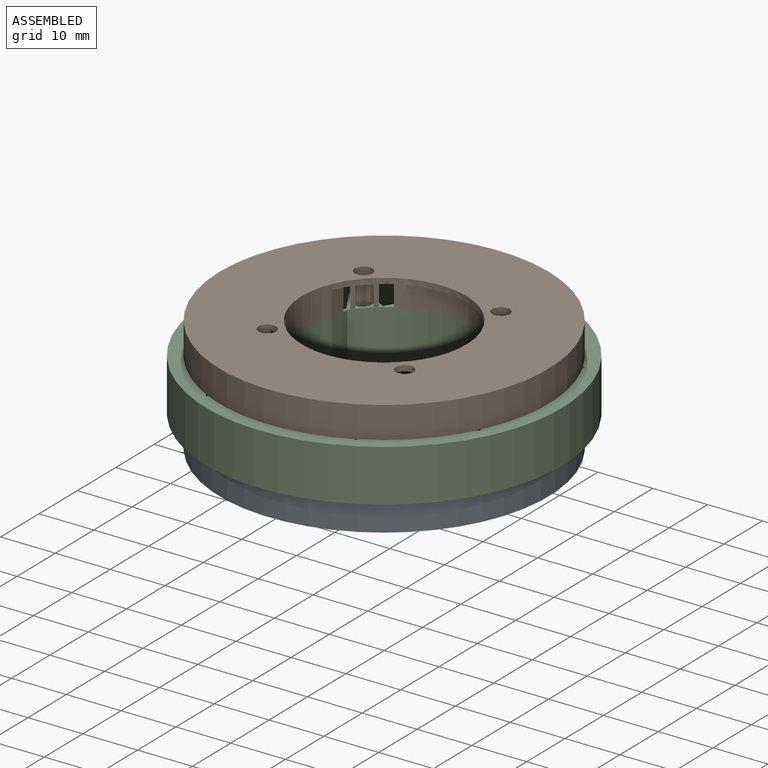
[diagram: assembled view]
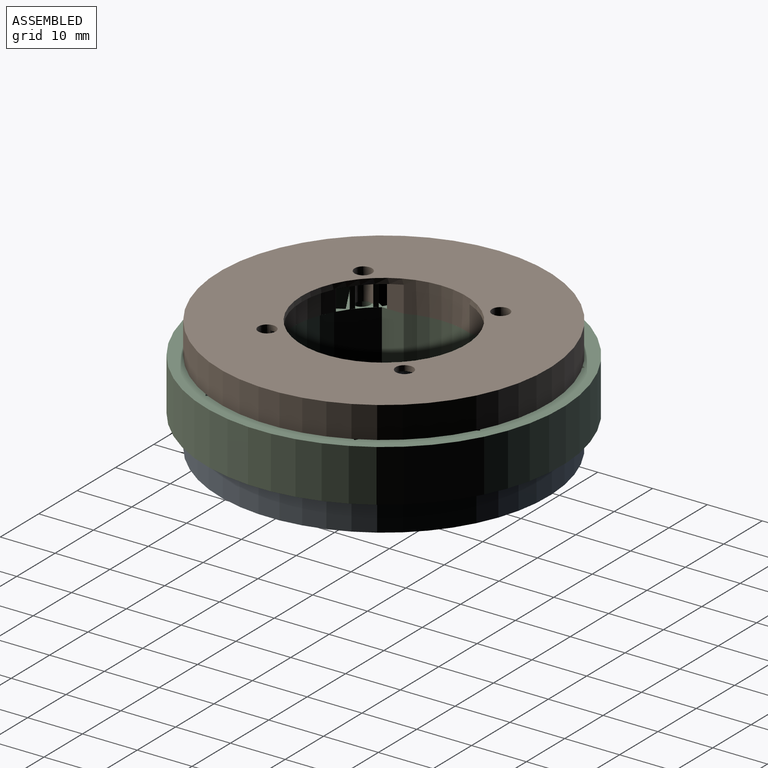
[diagram: assembled view, second angle]
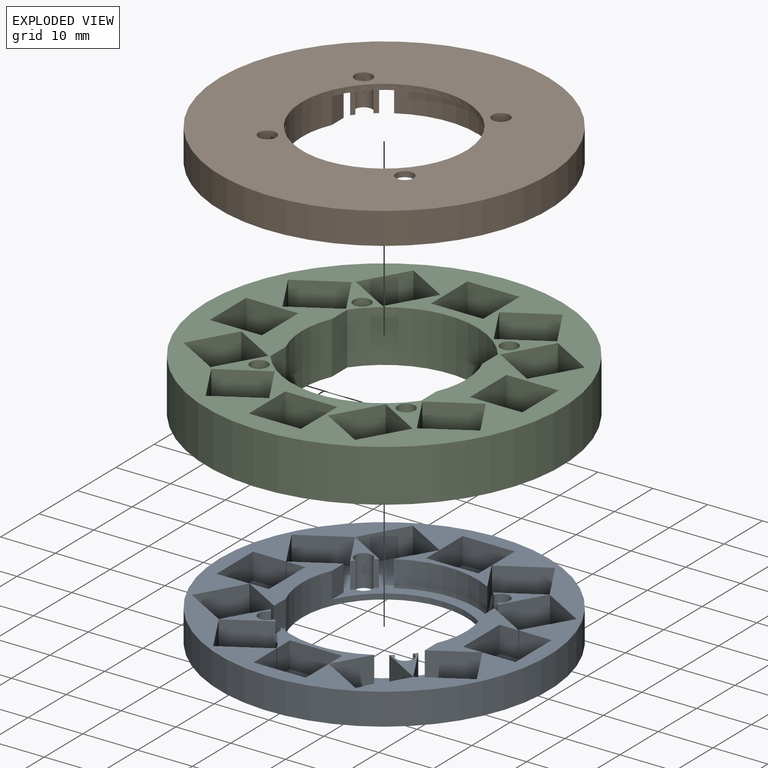
[diagram: exploded view]
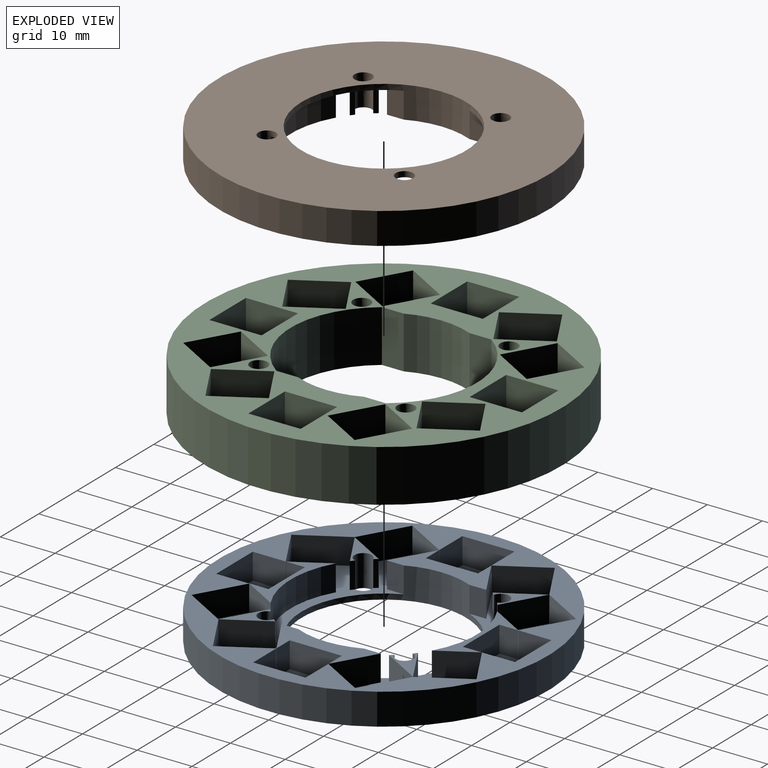
[diagram: exploded view, second angle]
ASSEMBLY  parts=3 mates=2
PART A: 87 faces, bbox 60x60x5.8 mm
  f0: plane 7.36x7.36mm, normal (0,0,1), area 11.4mm2, adj f40,f41,f69,f83,f85
  f1: plane 17x6.48mm, normal (0,0,1), area 26.7mm2, adj f15,f44,f45,f53,f54,f82
  f2: plane 7.36x7.36mm, normal (0,0,1), area 11.4mm2, adj f51,f52,f70,f84,f86
  f3: plane 18.13x7.45mm, normal (0,0,1), area 59.9mm2, adj f13,f17,f56,f57,f67,f68,f77,f81
  f4: plane 7.36x7.36mm, normal (0,0,1), area 11.4mm2, adj f65,f66,f71,f75,f76
  f5: plane 17x6.48mm, normal (0,0,1), area 26.7mm2, adj f11,f20,f29,f30,f64,f78
  f6: plane 18.13x7.45mm, normal (0,0,1), area 59.9mm2, adj f7,f8,f17,f33,f34,f42,f79,f80
  f7: plane 7.45x4.76mm, normal (-0.5,0.87,0), area 41mm2, adj f6,f31,f34,f79
  f8: plane 7.45x4.76mm, normal (-0.5,-0.87,0), area 41mm2, adj f6,f31,f42,f80
  f9: plane 60x60mm, normal (0,0,1), area 661.7mm2, adj f12,f14,f16,f18,f21,f22,f23,f24
  f10: plane 7.36x7.36mm, normal (0,0,1), area 11.4mm2, adj f27,f28,f72,f73,f74
  f11: plane 4.76x3.46mm, normal (-1,0,0), area 16.5mm2, adj f5,f20,f31,f64
  f12: plane 8.23x4.76mm, normal (-0.87,-0.5,0), area 45.3mm2, adj f9,f31,f50,f55
  f13: plane 7.45x4.76mm, normal (0.5,-0.87,0), area 41mm2, adj f3,f31,f57,f81
  f14: plane 8.23x4.76mm, normal (-0.5,0.87,0), area 45.3mm2, adj f9,f31,f39,f43
  f15: plane 6.48x4.76mm, normal (-0.87,-0.5,0), area 35.6mm2, adj f1,f31,f45,f82
  f16: plane 8.23x4.76mm, normal (0.87,0.5,0), area 45.3mm2, adj f9,f26,f31,f32
  f17: cylinder r=15mm len=30mm, axis (0,0,-1), area 211.8mm2, adj f3,f6,f19,f31,f77,f79,f80,f81
  f18: cylinder r=30mm len=60mm, axis (0,0,-1), area 1086.2mm2, adj f9,f19
  f19: plane 60x60mm, normal (0,0,-1), area 2088.9mm2, adj f17,f18,f69,f70,f71,f72
  f20: plane 9.53x4.76mm, normal (0,1,0), area 45.4mm2, adj f5,f11,f30,f31
  f21: plane 6.02x4.76mm, normal (-1,0,0), area 28.7mm2, adj f9,f22,f31,f63
  f22: plane 9.53x4.76mm, normal (0,-1,0), area 45.4mm2, adj f9,f21,f23,f31
  f23: plane 6.02x4.76mm, normal (1,0,0), area 28.7mm2, adj f9,f22,f24,f31
  f24: plane 8.23x4.76mm, normal (-0.5,-0.87,0), area 45.3mm2, adj f9,f23,f25,f31
  f25: plane 8.24x4.76mm, normal (0.87,-0.5,0), area 45.3mm2, adj f9,f24,f26,f31
  f26: plane 8.24x4.76mm, normal (0.5,-0.87,0), area 45.3mm2, adj f9,f16,f25,f31
  f27: plane 7.36x4.76mm, normal (-0.87,-0.5,0), area 40.5mm2, adj f10,f28,f31,f74
  f28: plane 7.36x4.76mm, normal (0.5,0.87,0), area 40.5mm2, adj f10,f27,f31,f73
  f29: plane 6.48x4.76mm, normal (-0.87,0.5,0), area 35.6mm2, adj f5,f30,f31,f78
  f30: plane 4.76x3.46mm, normal (1,0,0), area 16.5mm2, adj f5,f20,f29,f31
  f31: plane 54.53x54.53mm, normal (0,0,1), area 1208.4mm2, adj f7,f8,f11,f12,f13,f14,f15,f16
  f32: plane 6.02x4.76mm, normal (0,-1,0), area 28.7mm2, adj f9,f16,f31,f35
  f33: plane 9.53x4.76mm, normal (-1,0,0), area 45.4mm2, adj f6,f31,f34,f42
  f34: plane 4.76x3.46mm, normal (0,-1,0), area 16.5mm2, adj f6,f7,f31,f33
  f35: plane 9.53x4.76mm, normal (1,0,0), area 45.4mm2, adj f9,f31,f32,f36
  f36: plane 6.02x4.76mm, normal (0,1,0), area 28.7mm2, adj f9,f31,f35,f37
  f37: plane 8.23x4.76mm, normal (0.87,-0.5,0), area 45.3mm2, adj f9,f31,f36,f38
  f38: plane 8.24x4.76mm, normal (0.5,0.87,0), area 45.3mm2, adj f9,f31,f37,f39
  f39: plane 8.24x4.76mm, normal (0.87,0.5,0), area 45.3mm2, adj f9,f14,f31,f38
  f40: plane 7.36x4.76mm, normal (0.5,-0.87,0), area 40.5mm2, adj f0,f31,f41,f85
  f41: plane 7.36x4.76mm, normal (-0.87,0.5,0), area 40.5mm2, adj f0,f31,f40,f83
  f42: plane 4.76x3.46mm, normal (0,1,0), area 16.5mm2, adj f6,f8,f31,f33
  f43: plane 6.02x4.76mm, normal (1,0,0), area 28.7mm2, adj f9,f14,f31,f46
  f44: plane 9.53x4.76mm, normal (0,-1,0), area 45.4mm2, adj f1,f31,f45,f54
  f45: plane 4.76x3.46mm, normal (1,0,0), area 16.5mm2, adj f1,f15,f31,f44
  f46: plane 9.53x4.76mm, normal (0,1,0), area 45.4mm2, adj f9,f31,f43,f47
  f47: plane 6.02x4.76mm, normal (-1,0,0), area 28.7mm2, adj f9,f31,f46,f48
  f48: plane 8.23x4.76mm, normal (0.5,0.87,0), area 45.3mm2, adj f9,f31,f47,f49
  f49: plane 8.24x4.76mm, normal (-0.87,0.5,0), area 45.3mm2, adj f9,f31,f48,f50
  f50: plane 8.24x4.76mm, normal (-0.5,0.87,0), area 45.3mm2, adj f9,f12,f31,f49
  f51: plane 7.36x4.76mm, normal (0.87,0.5,0), area 40.5mm2, adj f2,f31,f52,f86
  f52: plane 7.36x4.76mm, normal (-0.5,-0.87,0), area 40.5mm2, adj f2,f31,f51,f84
  f53: plane 6.48x4.76mm, normal (0.87,-0.5,0), area 35.6mm2, adj f1,f31,f54,f82
  f54: plane 4.76x3.46mm, normal (-1,0,0), area 16.5mm2, adj f1,f31,f44,f53
  f55: plane 6.02x4.76mm, normal (0,1,0), area 28.7mm2, adj f9,f12,f31,f58
  f56: plane 9.53x4.76mm, normal (1,0,0), area 45.4mm2, adj f3,f31,f57,f68
  f57: plane 4.76x3.46mm, normal (0,1,0), area 16.5mm2, adj f3,f13,f31,f56
  f58: plane 9.53x4.76mm, normal (-1,0,0), area 45.4mm2, adj f9,f31,f55,f59
  f59: plane 6.02x4.76mm, normal (0,-1,0), area 28.7mm2, adj f9,f31,f58,f60
  f60: plane 8.23x4.76mm, normal (-0.87,0.5,0), area 45.3mm2, adj f9,f31,f59,f61
  f61: plane 8.24x4.76mm, normal (-0.5,-0.87,0), area 45.3mm2, adj f9,f31,f60,f62
  f62: plane 8.24x4.76mm, normal (-0.87,-0.5,0), area 45.3mm2, adj f9,f31,f61,f63
  f63: plane 8.23x4.76mm, normal (0.5,-0.87,0), area 45.3mm2, adj f9,f21,f31,f62
  f64: plane 6.48x4.76mm, normal (0.87,0.5,0), area 35.6mm2, adj f5,f11,f31,f78
  f65: plane 7.36x4.76mm, normal (-0.5,0.87,0), area 40.5mm2, adj f4,f31,f66,f75
  f66: plane 7.36x4.76mm, normal (0.87,-0.5,0), area 40.5mm2, adj f4,f31,f65,f76
  f67: plane 7.45x4.76mm, normal (0.5,0.87,0), area 41mm2, adj f3,f31,f68,f77
  f68: plane 4.76x3.46mm, normal (0,-1,0), area 16.5mm2, adj f3,f31,f56,f67
  f69: cylinder r=1.59mm len=5.76mm, axis (0,0,1), area 41.6mm2, adj f0,f19,f31,f83,f85
  f70: cylinder r=1.59mm len=5.76mm, axis (0,0,1), area 41.6mm2, adj f2,f19,f31,f84,f86
  f71: cylinder r=1.59mm len=5.76mm, axis (0,0,1), area 41.6mm2, adj f4,f19,f31,f75,f76
  f72: cylinder r=1.59mm len=5.76mm, axis (0,0,1), area 41.6mm2, adj f10,f19,f31,f73,f74
  f73: cylinder r=17mm len=4.76mm, axis (0,0,1), area 3.9mm2, adj f10,f28,f31,f72
  f74: cylinder r=17mm len=4.76mm, axis (0,0,1), area 3.9mm2, adj f10,f27,f31,f72
  f75: cylinder r=17mm len=4.76mm, axis (0,0,1), area 3.9mm2, adj f4,f31,f65,f71
  f76: cylinder r=17mm len=4.76mm, axis (0,0,1), area 3.9mm2, adj f4,f31,f66,f71
  f77: plane 4.76x3.06mm, normal (-1,0,0), area 14.6mm2, adj f3,f17,f31,f67
  f78: cylinder r=17mm len=17mm, axis (0,0,1), area 84.8mm2, adj f5,f29,f31,f64
  f79: plane 4.76x3.06mm, normal (1,0,0), area 14.6mm2, adj f6,f7,f17,f31
  f80: plane 4.76x3.06mm, normal (1,0,0), area 14.6mm2, adj f6,f8,f17,f31
  f81: plane 4.76x3.06mm, normal (-1,0,0), area 14.6mm2, adj f3,f13,f17,f31
  f82: cylinder r=17mm len=17mm, axis (0,0,1), area 84.8mm2, adj f1,f15,f31,f53
  f83: cylinder r=17mm len=4.76mm, axis (0,0,1), area 3.9mm2, adj f0,f31,f41,f69
  f84: cylinder r=17mm len=4.76mm, axis (0,0,1), area 3.9mm2, adj f2,f31,f52,f70
  f85: cylinder r=17mm len=4.76mm, axis (0,0,1), area 3.9mm2, adj f0,f31,f40,f69
  f86: cylinder r=17mm len=4.76mm, axis (0,0,1), area 3.9mm2, adj f2,f31,f51,f70
PART B: same geometry as A
PART C: 63 faces, bbox 65x65x9.5 mm
  f0: plane 65x65mm, normal (0,0,1), area 1358.3mm2, adj f2,f3,f4,f5,f6,f7,f8,f9
  f1: plane 65x65mm, normal (0,0,-1), area 1358.3mm2, adj f2,f3,f4,f5,f6,f7,f8,f9
  f2: cylinder r=15mm len=12mm, axis (0,0,-1), area 117.6mm2, adj f0,f1,f57,f61
  f3: cylinder r=15mm len=12mm, axis (0,0,-1), area 117.6mm2, adj f0,f1,f58,f62
  f4: cylinder r=32.5mm len=65mm, axis (0,0,-1), area 1945mm2, adj f0,f1
  f5: plane 9.53x8.25mm, normal (0.87,-0.5,0), area 90.7mm2, adj f0,f1,f6,f8
  f6: plane 9.53x8.25mm, normal (0.5,0.87,0), area 90.7mm2, adj f0,f1,f5,f7
  f7: plane 9.53x8.25mm, normal (-0.87,0.5,0), area 90.7mm2, adj f0,f1,f6,f8
  f8: plane 9.53x8.25mm, normal (-0.5,-0.87,0), area 90.7mm2, adj f0,f1,f5,f7
  f9: plane 9.53x8.25mm, normal (-0.87,-0.5,0), area 90.7mm2, adj f0,f1,f10,f12
  f10: plane 9.53x8.25mm, normal (0.5,-0.87,0), area 90.7mm2, adj f0,f1,f9,f11
  f11: plane 9.53x8.25mm, normal (0.87,0.5,0), area 90.7mm2, adj f0,f1,f10,f12
  f12: plane 9.53x8.25mm, normal (-0.5,0.87,0), area 90.7mm2, adj f0,f1,f9,f11
  f13: plane 9.53x9.53mm, normal (-1,0,0), area 90.7mm2, adj f0,f1,f14,f16
  f14: plane 9.53x9.53mm, normal (0,-1,0), area 90.7mm2, adj f0,f1,f13,f15
  f15: plane 9.53x9.53mm, normal (1,0,0), area 90.7mm2, adj f0,f1,f14,f16
  f16: plane 9.53x9.53mm, normal (0,1,0), area 90.7mm2, adj f0,f1,f13,f15
  f17: plane 9.53x8.25mm, normal (0.5,0.87,0), area 90.7mm2, adj f0,f1,f18,f20
  f18: plane 9.53x8.25mm, normal (-0.87,0.5,0), area 90.7mm2, adj f0,f1,f17,f19
  f19: plane 9.53x8.25mm, normal (-0.5,-0.87,0), area 90.7mm2, adj f0,f1,f18,f20
  f20: plane 9.53x8.25mm, normal (0.87,-0.5,0), area 90.7mm2, adj f0,f1,f17,f19
  f21: plane 9.53x8.25mm, normal (0.5,-0.87,0), area 90.7mm2, adj f0,f1,f22,f24
  f22: plane 9.53x8.25mm, normal (0.87,0.5,0), area 90.7mm2, adj f0,f1,f21,f23
  f23: plane 9.53x8.25mm, normal (-0.5,0.87,0), area 90.7mm2, adj f0,f1,f22,f24
  f24: plane 9.53x8.25mm, normal (-0.87,-0.5,0), area 90.7mm2, adj f0,f1,f21,f23
  f25: plane 9.53x9.53mm, normal (0,-1,0), area 90.7mm2, adj f0,f1,f26,f28
  f26: plane 9.53x9.53mm, normal (1,0,0), area 90.7mm2, adj f0,f1,f25,f27
  f27: plane 9.53x9.53mm, normal (0,1,0), area 90.7mm2, adj f0,f1,f26,f28
  f28: plane 9.53x9.53mm, normal (-1,0,0), area 90.7mm2, adj f0,f1,f25,f27
  f29: plane 9.53x8.25mm, normal (-0.87,0.5,0), area 90.7mm2, adj f0,f1,f30,f32
  f30: plane 9.53x8.25mm, normal (-0.5,-0.87,0), area 90.7mm2, adj f0,f1,f29,f31
  f31: plane 9.53x8.25mm, normal (0.87,-0.5,0), area 90.7mm2, adj f0,f1,f30,f32
  f32: plane 9.53x8.25mm, normal (0.5,0.87,0), area 90.7mm2, adj f0,f1,f29,f31
  f33: plane 9.53x8.25mm, normal (0.87,0.5,0), area 90.7mm2, adj f0,f1,f34,f36
  f34: plane 9.53x8.25mm, normal (-0.5,0.87,0), area 90.7mm2, adj f0,f1,f33,f35
  f35: plane 9.53x8.25mm, normal (-0.87,-0.5,0), area 90.7mm2, adj f0,f1,f34,f36
  f36: plane 9.53x8.25mm, normal (0.5,-0.87,0), area 90.7mm2, adj f0,f1,f33,f35
  f37: plane 9.53x9.53mm, normal (1,0,0), area 90.7mm2, adj f0,f1,f38,f40
  f38: plane 9.53x9.53mm, normal (0,1,0), area 90.7mm2, adj f0,f1,f37,f39
  f39: plane 9.53x9.53mm, normal (-1,0,0), area 90.7mm2, adj f0,f1,f38,f40
  f40: plane 9.53x9.53mm, normal (0,-1,0), area 90.7mm2, adj f0,f1,f37,f39
  f41: plane 9.53x8.25mm, normal (-0.5,-0.87,0), area 90.7mm2, adj f0,f1,f42,f44
  f42: plane 9.53x8.25mm, normal (0.87,-0.5,0), area 90.7mm2, adj f0,f1,f41,f43
  f43: plane 9.53x8.25mm, normal (0.5,0.87,0), area 90.7mm2, adj f0,f1,f42,f44
  f44: plane 9.53x8.25mm, normal (-0.87,0.5,0), area 90.7mm2, adj f0,f1,f41,f43
  f45: plane 9.53x8.25mm, normal (-0.5,0.87,0), area 90.7mm2, adj f0,f1,f46,f48
  f46: plane 9.53x8.25mm, normal (-0.87,-0.5,0), area 90.7mm2, adj f0,f1,f45,f47
  f47: plane 9.53x8.25mm, normal (0.5,-0.87,0), area 90.7mm2, adj f0,f1,f46,f48
  f48: plane 9.53x8.25mm, normal (0.87,0.5,0), area 90.7mm2, adj f0,f1,f45,f47
  f49: plane 9.53x9.53mm, normal (0,1,0), area 90.7mm2, adj f0,f1,f50,f52
  f50: plane 9.53x9.53mm, normal (-1,0,0), area 90.7mm2, adj f0,f1,f49,f51
  f51: plane 9.53x9.53mm, normal (0,-1,0), area 90.7mm2, adj f0,f1,f50,f52
  f52: plane 9.53x9.53mm, normal (1,0,0), area 90.7mm2, adj f0,f1,f49,f51
  f53: cylinder r=1.59mm len=9.53mm, axis (0,0,1), area 95mm2, adj f0,f1
  f54: cylinder r=1.59mm len=9.53mm, axis (0,0,1), area 95mm2, adj f0,f1
  f55: cylinder r=1.59mm len=9.53mm, axis (0,0,1), area 95mm2, adj f0,f1
  f56: cylinder r=1.59mm len=9.53mm, axis (0,0,1), area 95mm2, adj f0,f1
  f57: plane 9.53x4mm, normal (1,0,0), area 38.1mm2, adj f0,f1,f2,f59
  f58: plane 9.53x4mm, normal (-1,0,0), area 38.1mm2, adj f0,f1,f3,f59
  f59: cylinder r=17mm len=27.5mm, axis (0,0,1), area 305mm2, adj f0,f1,f57,f58
  f60: cylinder r=17mm len=27.5mm, axis (0,0,1), area 305mm2, adj f0,f1,f61,f62
  f61: plane 9.53x4mm, normal (1,0,0), area 38.1mm2, adj f0,f1,f2,f60
  f62: plane 9.53x4mm, normal (-1,0,0), area 38.1mm2, adj f0,f1,f3,f60
PLACE A rot(axis=(0,0,-1),180deg) t=(0,0,2.88)mm
PLACE B rot(axis=(0,1,0),180deg) t=(0,0,18.17)mm
PLACE C rot(axis=(0,0,1),180deg) t=(0,0,10.53)mm
MATE cylindrical B.f17 <-> C.f2  axis (0,0,-1) through (0,0,15.29)mm
MATE revolute C.f2 <-> A.f17  axis (0,0,-1) through (0,0,5.76)mm
